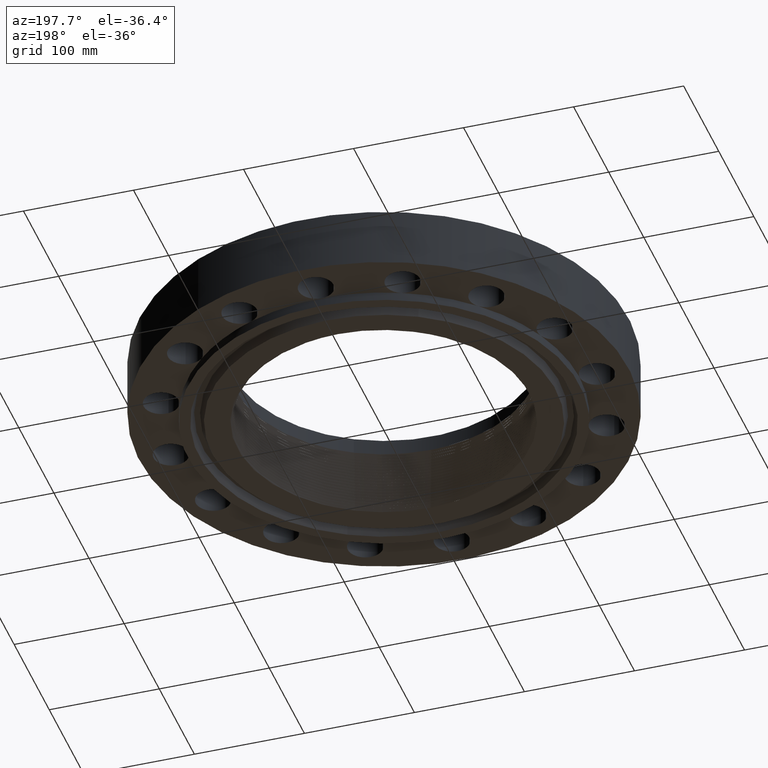
[diagram: clean part render]
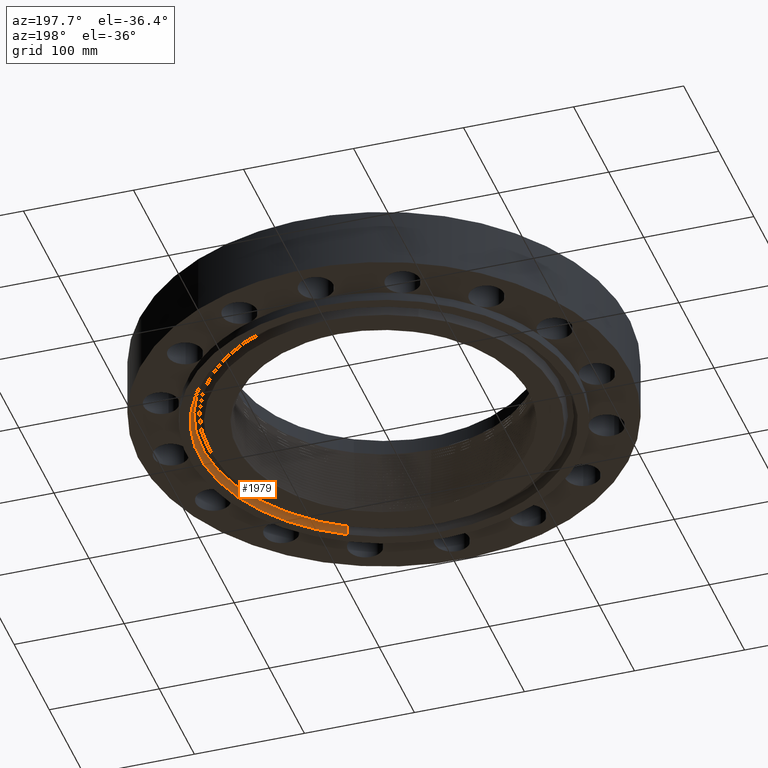
[diagram: same view with one face highlighted and labeled with its STEP entity id]
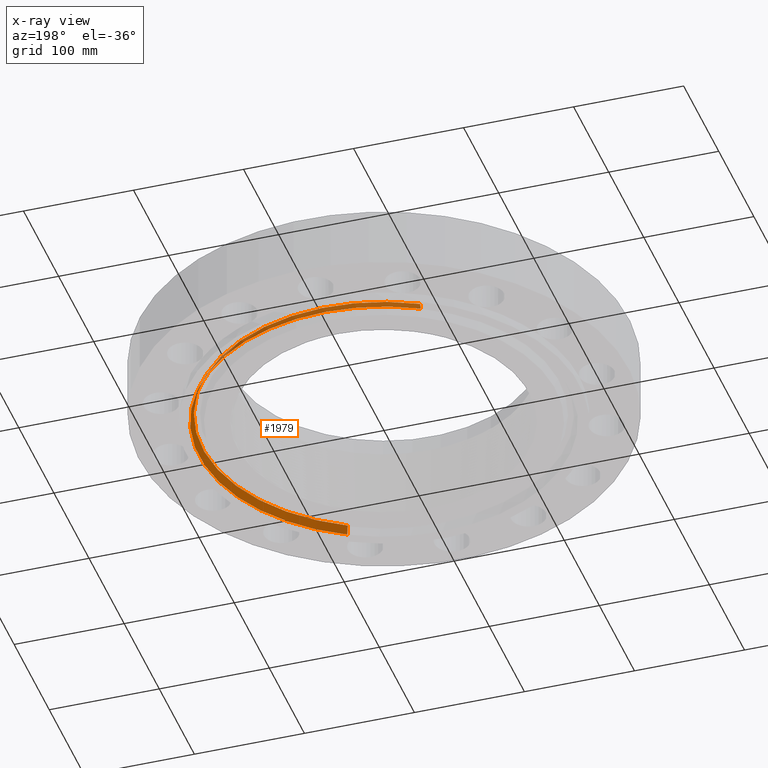
[diagram: x-ray of the same camera — body ghosted, the highlighted face saturated]
A machine part, auxiliary view. The second image highlights one B-rep face of the part: STEP entity #1979.
The next image is the same camera in x-ray: the body ghosted, the highlighted face saturated — about 0% of this face is hidden behind the body in this view.
In plain terms, the highlighted conical surface has half-angle 23 deg.
Its self-contained STEP definition (entity closure, byte-faithful):
#406=AXIS2_PLACEMENT_3D('Circle Axis2P3D',#404,#405,$) ;
#1914=AXIS2_PLACEMENT_3D('Cone Axis2P3D',#1911,#1912,#1913) ;
#1935=AXIS2_PLACEMENT_3D('Circle Axis2P3D',#1933,#1934,$) ;
#399=CARTESIAN_POINT('Vertex',(3.16876309742,-5.80038194284,-0.313000000001)) ;
#401=CARTESIAN_POINT('Vertex',(-3.16876309742,5.80038194284,-0.313000000001)) ;
#404=CARTESIAN_POINT('Axis2P3D Location',(0.,-5.59482469102E-016,-0.313000000001)) ;
#1880=CARTESIAN_POINT('Vertex',(-3.10890997382,5.69082153499,-0.0188873350169)) ;
#1882=CARTESIAN_POINT('Vertex',(3.10890997382,-5.69082153499,-0.0188873350169)) ;
#1911=CARTESIAN_POINT('Axis2P3D Location',(0.,0.,-0.0188873350169)) ;
#1916=CARTESIAN_POINT('Line Origine',(-3.13883653562,5.74560173892,-0.165943667509)) ;
#1921=CARTESIAN_POINT('Line Origine',(3.13883653562,-5.74560173892,-0.165943667509)) ;
#1933=CARTESIAN_POINT('Axis2P3D Location',(0.,0.,-0.0188873350169)) ;
#405=DIRECTION('Axis2P3D Direction',(0.,0.,-0.0393700787402)) ;
#1912=DIRECTION('Axis2P3D Direction',(-0.,-0.,-0.0393700787402)) ;
#1913=DIRECTION('Axis2P3D XDirection',(-0.0188750212049,0.0345504945626,0.)) ;
#1917=DIRECTION('Vector Direction',(-0.00737505833565,0.0134999537303,-0.0362403485611)) ;
#1922=DIRECTION('Vector Direction',(0.00737505833565,-0.0134999537303,-0.0362403485611)) ;
#1934=DIRECTION('Axis2P3D Direction',(0.,0.,0.0393700787402)) ;
#1918=VECTOR('Line Direction',#1917,0.0393700787402) ;
#1923=VECTOR('Line Direction',#1922,0.0393700787402) ;
#1974=ORIENTED_EDGE('',*,*,#408,.T.) ;
#1975=ORIENTED_EDGE('',*,*,#1925,.T.) ;
#1976=ORIENTED_EDGE('',*,*,#1937,.T.) ;
#1977=ORIENTED_EDGE('',*,*,#1920,.F.) ;
#1979=ADVANCED_FACE('PartBody',(#1978),#1915,.F.) ;
#407=CIRCLE('generated circle',#406,6.60950000003) ;
#1936=CIRCLE('generated circle',#1935,6.48465658061) ;
#1915=CONICAL_SURFACE('Cone',#1914,6.48465658061,0.401425727959) ;
#408=EDGE_CURVE('',#402,#400,#407,.T.) ;
#1920=EDGE_CURVE('',#402,#1881,#1919,.F.) ;
#1925=EDGE_CURVE('',#400,#1883,#1924,.F.) ;
#1937=EDGE_CURVE('',#1883,#1881,#1936,.T.) ;
#1973=EDGE_LOOP('',(#1974,#1975,#1976,#1977)) ;
#1978=FACE_OUTER_BOUND('',#1973,.T.) ;
#1919=LINE('Line',#1916,#1918) ;
#1924=LINE('Line',#1921,#1923) ;
#400=VERTEX_POINT('',#399) ;
#402=VERTEX_POINT('',#401) ;
#1881=VERTEX_POINT('',#1880) ;
#1883=VERTEX_POINT('',#1882) ;